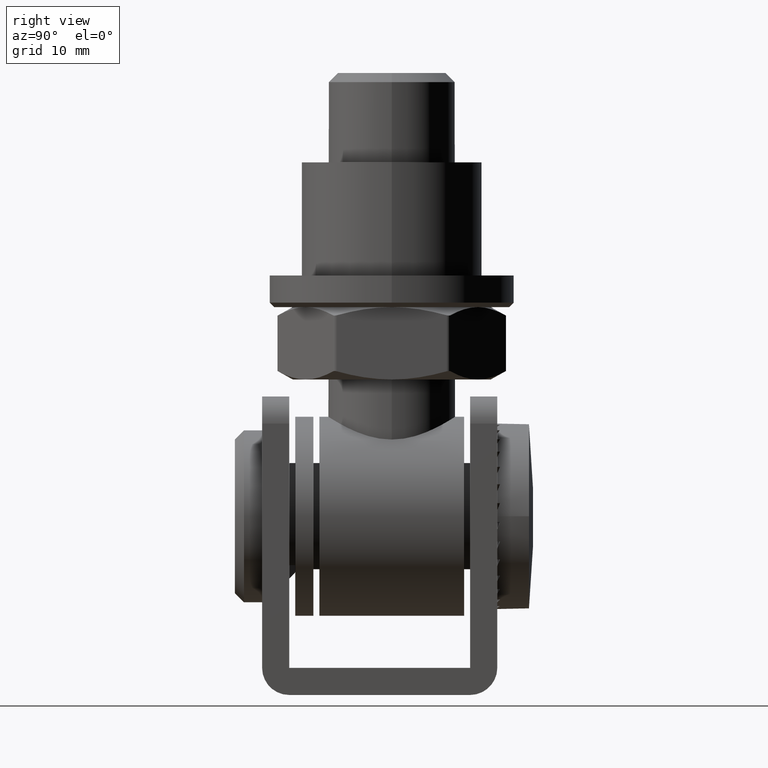
[diagram: clean part render]
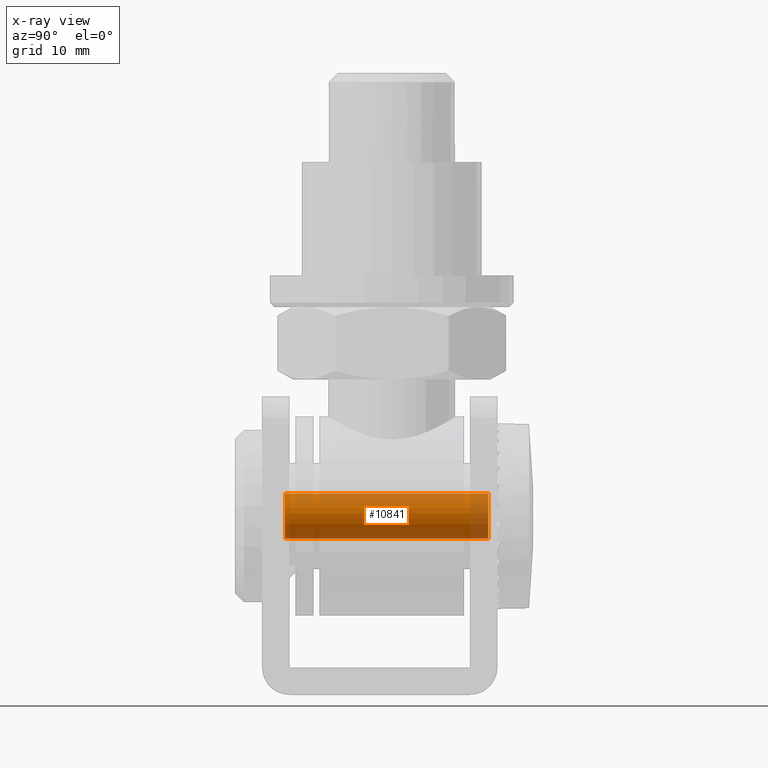
[diagram: x-ray — body ghosted, one internal face saturated and labeled with its STEP entity id]
A machine part, right view, then the same camera in x-ray: the body is ghosted and one INTERNAL B-rep face — a face not visible from any outside direction — is saturated and labeled: STEP entity #10841.
In plain terms, the highlighted cylindrical surface (bore or boss wall) has radius 2.5 mm, axis along (0, 1, 0).
Its self-contained STEP definition (entity closure, byte-faithful):
#208 = DIRECTION ( 'NONE',  ( 0.000000000000000000, 0.000000000000000000, 1.000000000000000000 ) ) ;
#707 = VERTEX_POINT ( 'NONE', #11845 ) ;
#1752 = VERTEX_POINT ( 'NONE', #8056 ) ;
#1778 = EDGE_LOOP ( 'NONE', ( #7126 ) ) ;
#1797 = ORIENTED_EDGE ( 'NONE', *, *, #10374, .T. ) ;
#1816 = CARTESIAN_POINT ( 'NONE',  ( 7.703719777548943412E-30, 5.500000000000005329, 0.000000000000000000 ) ) ;
#2363 = CIRCLE ( 'NONE', #3656, 2.499999999999996003 ) ;
#3656 = AXIS2_PLACEMENT_3D ( 'NONE', #6513, #14730, #4686 ) ;
#4078 = AXIS2_PLACEMENT_3D ( 'NONE', #1816, #5238, #208 ) ;
#4686 = DIRECTION ( 'NONE',  ( 0.000000000000000000, 0.000000000000000000, -1.000000000000000000 ) ) ;
#5238 = DIRECTION ( 'NONE',  ( -2.137108174903138078E-47, 1.000000000000000000, -1.646110961499490869E-31 ) ) ;
#5489 = EDGE_CURVE ( 'NONE', #1752, #1752, #18333, .T. ) ;
#6175 = FACE_OUTER_BOUND ( 'NONE', #14275, .T. ) ;
#6513 = CARTESIAN_POINT ( 'NONE',  ( 0.000000000000000000, 28.00000000000000355, 0.000000000000000000 ) ) ;
#7126 = ORIENTED_EDGE ( 'NONE', *, *, #5489, .F. ) ;
#7925 = CARTESIAN_POINT ( 'NONE',  ( 7.703719777548943412E-30, 28.50000000000000355, 0.000000000000000000 ) ) ;
#8056 = CARTESIAN_POINT ( 'NONE',  ( 7.703719777548943412E-30, 5.500000000000005329, 2.499999999999995115 ) ) ;
#9484 = CYLINDRICAL_SURFACE ( 'NONE', #10733, 2.499999999999996003 ) ;
#10374 = EDGE_CURVE ( 'NONE', #707, #707, #2363, .T. ) ;
#10733 = AXIS2_PLACEMENT_3D ( 'NONE', #7925, #11211, #20788 ) ;
#10841 = ADVANCED_FACE ( 'NONE', ( #6175, #13080 ), #9484, .F. ) ;
#11211 = DIRECTION ( 'NONE',  ( -2.137108174903138078E-47, 1.000000000000000000, -1.646110961499490869E-31 ) ) ;
#11845 = CARTESIAN_POINT ( 'NONE',  ( 0.000000000000000000, 28.00000000000000355, -2.499999999999996003 ) ) ;
#13080 = FACE_OUTER_BOUND ( 'NONE', #1778, .T. ) ;
#14275 = EDGE_LOOP ( 'NONE', ( #1797 ) ) ;
#14730 = DIRECTION ( 'NONE',  ( -2.137108174903138078E-47, 1.000000000000000000, -1.646110961499490869E-31 ) ) ;
#18333 = CIRCLE ( 'NONE', #4078, 2.499999999999995115 ) ;
#20788 = DIRECTION ( 'NONE',  ( 0.000000000000000000, 0.000000000000000000, 1.000000000000000000 ) ) ;